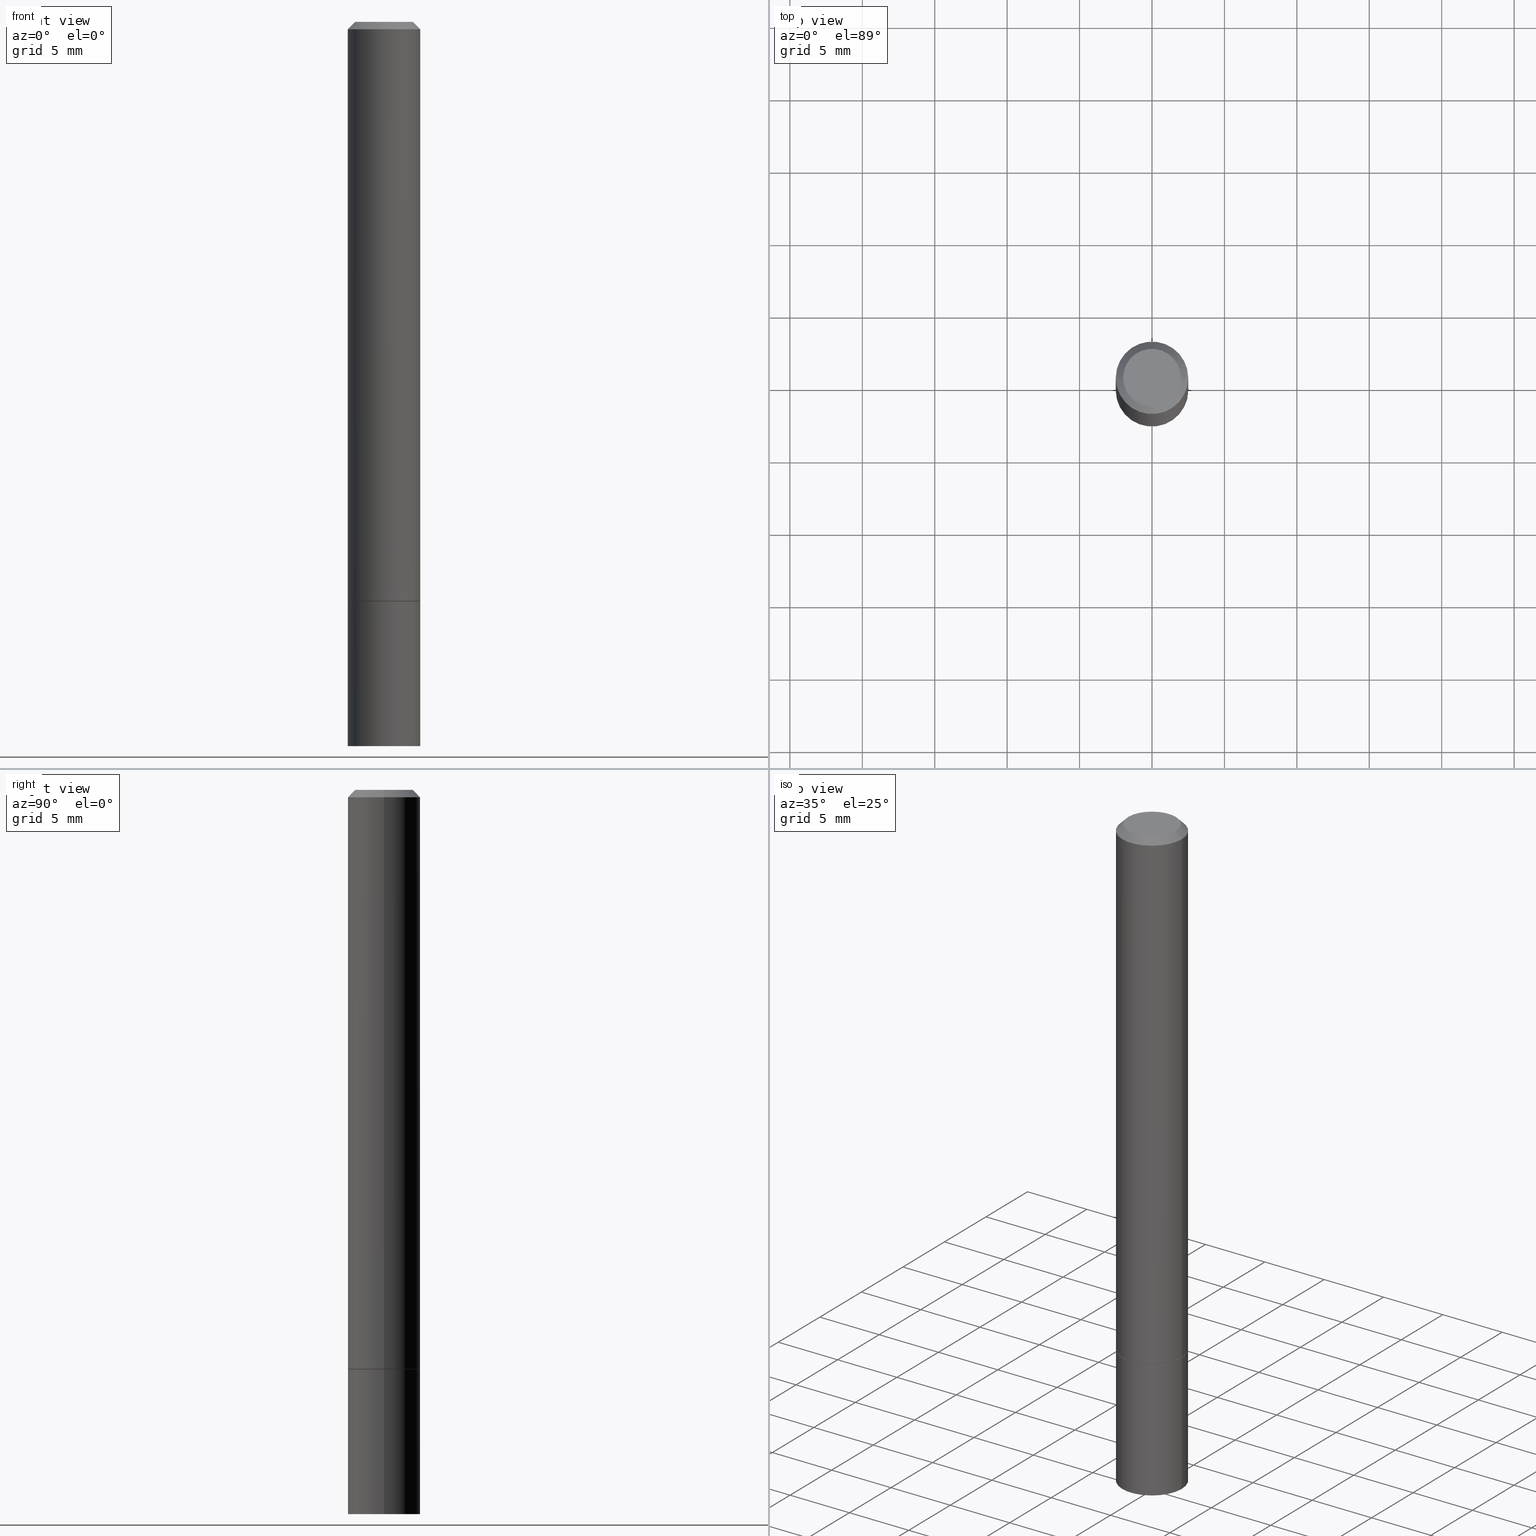
[diagram: canonical four-view strip — front | top / right | iso, engineering-drawing reading convention]
A machine part, canonical four-view strip (front | top / right | iso — engineering-drawing reading convention). The complete STEP part file that produces these views, byte-faithful:
ISO-10303-21;
HEADER;
FILE_DESCRIPTION (( 'STEP AP203' ),
    '1' );
FILE_NAME ('49165.STEP',
    '2024-02-28T16:18:36',
    ( '' ),
    ( '' ),
    'SwSTEP 2.0',
    'SolidWorks 2023',
    '' );
FILE_SCHEMA (( 'CONFIG_CONTROL_DESIGN' ));
ENDSEC;

DATA;
#1 = DIRECTION ( 'NONE',  ( -2.445468806185136597E-29, 3.491481338843145583E-15, 1.000000000000000000 ) ) ;
#2 = DIRECTION ( 'NONE',  ( 1.000000000000000000, 0.000000000000000000, 0.000000000000000000 ) ) ;
#3 = EDGE_CURVE ( 'NONE', #301, #77, #68, .T. ) ;
#4 = MANIFOLD_SOLID_BREP ( 'Body-Move/Copy2[1]', #205 ) ;
#5 = ORIENTED_EDGE ( 'NONE', *, *, #176, .F. ) ;
#6 = AXIS2_PLACEMENT_3D ( 'NONE', #233, #208, #339 ) ;
#7 = CC_DESIGN_DATE_AND_TIME_ASSIGNMENT ( #12, #246, ( #186 ) ) ;
#8 = ORIENTED_EDGE ( 'NONE', *, *, #245, .F. ) ;
#9 = CALENDAR_DATE ( 2024, 28, 2 ) ;
#10 = CARTESIAN_POINT ( 'NONE',  ( 4.890937612370278413E-31, -6.982962677686297772E-17, -0.02000000000000002123 ) ) ;
#11 = EDGE_CURVE ( 'NONE', #60, #78, #219, .T. ) ;
#12 = DATE_AND_TIME ( #152, #46 ) ;
#13 = APPROVAL_ROLE ( '' ) ;
#14 = AXIS2_PLACEMENT_3D ( 'NONE', #340, #69, #333 ) ;
#15 = APPLICATION_CONTEXT ( 'configuration controlled 3d designs of mechanical parts and assemblies' ) ;
#16 = PERSON_AND_ORGANIZATION ( #279, #214 ) ;
#17 = DIRECTION ( 'NONE',  ( 2.438088387897960049E-29, -3.491481338843145188E-15, -1.000000000000000000 ) ) ;
#18 = CARTESIAN_POINT ( 'NONE',  ( -0.09744999999999999496, -4.800662462063746650E-15, -1.574800000000000422 ) ) ;
#19 = APPROVAL ( #294, 'UNSPECIFIED' ) ;
#20 = FACE_OUTER_BOUND ( 'NONE', #53, .T. ) ;
#21 = CARTESIAN_POINT ( 'NONE',  ( -0.09844999999999999585, -2.082832155568281168E-15, -1.573800000000000088 ) ) ;
#22 = DIRECTION ( 'NONE',  ( -2.445468806185136597E-29, 3.491481338843145583E-15, 1.000000000000000000 ) ) ;
#23 = CLOSED_SHELL ( 'NONE', ( #287, #299, #174, #341, #331, #146, #41, #191 ) ) ;
#24 = ORIENTED_EDGE ( 'NONE', *, *, #93, .T. ) ;
#25 = DIRECTION ( 'NONE',  ( 1.000000000000000000, -6.982962677686266711E-15, 4.876176775795936353E-29 ) ) ;
#26 = ORIENTED_EDGE ( 'NONE', *, *, #101, .F. ) ;
#27 = ORIENTED_EDGE ( 'NONE', *, *, #160, .T. ) ;
#28 = APPLICATION_PROTOCOL_DEFINITION ( 'international standard', 'config_control_design', 1994, #15 ) ;
#29 = ORIENTED_EDGE ( 'NONE', *, *, #256, .F. ) ;
#30 = CYLINDRICAL_SURFACE ( 'NONE', #90, 0.09844999999999988483 ) ;
#31 = CARTESIAN_POINT ( 'NONE',  ( 3.851124275980353916E-29, -5.498384812410186944E-15, -1.574800000000000422 ) ) ;
#32 = EDGE_CURVE ( 'NONE', #196, #307, #253, .T. ) ;
#33 = DIRECTION ( 'NONE',  ( 0.7071067811864267805, -2.468850131080992517E-15, 0.7071067811866682540 ) ) ;
#34 = CALENDAR_DATE ( 2024, 28, 2 ) ;
#35 = LINE ( 'NONE', #317, #188 ) ;
#36 = CIRCLE ( 'NONE', #139, 0.09744999999999999496 ) ;
#37 = PERSON_AND_ORGANIZATION ( #279, #214 ) ;
#38 = EDGE_CURVE ( 'NONE', #72, #307, #150, .T. ) ;
#39 = CARTESIAN_POINT ( 'NONE',  ( 0.09844999999999978768, -7.452456546574688288E-16, -0.02000000000000002123 ) ) ;
#40 = AXIS2_PLACEMENT_3D ( 'NONE', #143, #80, #173 ) ;
#41 = ADVANCED_FACE ( 'NONE', ( #238 ), #211, .F. ) ;
#42 = DIRECTION ( 'NONE',  ( 1.000000000000000000, -6.982962677686265922E-15, 0.000000000000000000 ) ) ;
#43 = CARTESIAN_POINT ( 'NONE',  ( 0.07844999999999981155, -6.417258612913221441E-16, 4.159044147803931210E-30 ) ) ;
#44 = AXIS2_PLACEMENT_3D ( 'NONE', #65, #161, #100 ) ;
#45 = FACE_OUTER_BOUND ( 'NONE', #207, .T. ) ;
#46 = LOCAL_TIME ( 11, 18, 36.00000000000000000, #300 ) ;
#47 = DIRECTION ( 'NONE',  ( -2.445468806185136597E-29, 3.491481338843145583E-15, 1.000000000000000000 ) ) ;
#48 = ORIENTED_EDGE ( 'NONE', *, *, #3, .F. ) ;
#49 = DIRECTION ( 'NONE',  ( 1.000000000000000000, -6.982962677686266711E-15, 0.000000000000000000 ) ) ;
#50 = CARTESIAN_POINT ( 'NONE',  ( 0.000000000000000000, 0.000000000000000000, 0.000000000000000000 ) ) ;
#51 = VECTOR ( 'NONE', #203, 39.37007874015748143 ) ;
#52 = ORIENTED_EDGE ( 'NONE', *, *, #38, .F. ) ;
#53 = EDGE_LOOP ( 'NONE', ( #175, #167, #144, #336 ) ) ;
#54 = CARTESIAN_POINT ( 'NONE',  ( 6.874726756182513129E-16, 0.09844999999999450024, -1.574800000000000422 ) ) ;
#55 = CIRCLE ( 'NONE', #364, 0.09844999999999999585 ) ;
#56 = CC_DESIGN_APPROVAL ( #19, ( #206 ) ) ;
#57 = CARTESIAN_POINT ( 'NONE',  ( 3.848678807174168313E-29, -5.494893331071342359E-15, -1.573800000000000088 ) ) ;
#58 = EDGE_LOOP ( 'NONE', ( #194, #141, #259, #114 ) ) ;
#59 = DIRECTION ( 'NONE',  ( -2.445468806185136877E-29, 3.491481338843145188E-15, 1.000000000000000000 ) ) ;
#60 = VERTEX_POINT ( 'NONE', #267 ) ;
#61 = DIRECTION ( 'NONE',  ( -2.438088387897960049E-29, 3.491481338843145188E-15, 1.000000000000000000 ) ) ;
#62 = APPROVAL_ROLE ( '' ) ;
#63 = LINE ( 'NONE', #147, #164 ) ;
#64 = CC_DESIGN_PERSON_AND_ORGANIZATION_ASSIGNMENT ( #168, #289, ( #266 ) ) ;
#65 = CARTESIAN_POINT ( 'NONE',  ( 0.000000000000000000, 0.000000000000000000, 0.000000000000000000 ) ) ;
#66 = EDGE_CURVE ( 'NONE', #196, #192, #63, .T. ) ;
#67 = CYLINDRICAL_SURFACE ( 'NONE', #286, 0.09844999999999999585 ) ;
#68 = CIRCLE ( 'NONE', #6, 0.07844999999999981155 ) ;
#69 = DIRECTION ( 'NONE',  ( -2.445468806185136597E-29, 3.491481338843145583E-15, 1.000000000000000000 ) ) ;
#70 = ORIENTED_EDGE ( 'NONE', *, *, #104, .T. ) ;
#71 = FACE_OUTER_BOUND ( 'NONE', #179, .T. ) ;
#72 = VERTEX_POINT ( 'NONE', #342 ) ;
#73 = CARTESIAN_POINT ( 'NONE',  ( 4.890937612370278413E-31, -6.982962677686297772E-17, -0.02000000000000002123 ) ) ;
#74 = ORIENTED_EDGE ( 'NONE', *, *, #245, .T. ) ;
#75 = CONICAL_SURFACE ( 'NONE', #296, 0.09744999999999999496, 0.7853981633972775267 ) ;
#76 = VECTOR ( 'NONE', #59, 39.37007874015748143 ) ;
#77 = VERTEX_POINT ( 'NONE', #86 ) ;
#78 = VERTEX_POINT ( 'NONE', #85 ) ;
#79 = DIRECTION ( 'NONE',  ( 1.000000000000000000, -6.982962677686265922E-15, 0.000000000000000000 ) ) ;
#80 = DIRECTION ( 'NONE',  ( -2.445468806185136597E-29, 3.491481338843145583E-15, 1.000000000000000000 ) ) ;
#81 = MECHANICAL_CONTEXT ( 'NONE', #308, 'mechanical' ) ;
#82 = CC_DESIGN_DATE_AND_TIME_ASSIGNMENT ( #145, #123, ( #231 ) ) ;
#83 = DIRECTION ( 'NONE',  ( -2.445468806185136597E-29, 3.491481338843145583E-15, 1.000000000000000000 ) ) ;
#84 = AXIS2_PLACEMENT_3D ( 'NONE', #318, #240, #42 ) ;
#85 = CARTESIAN_POINT ( 'NONE',  ( 0.09844999999999999585, -7.560453691130944267E-15, -1.968500000000000139 ) ) ;
#86 = CARTESIAN_POINT ( 'NONE',  ( -0.07844999999999981155, 5.827282354529173170E-16, -3.953055038153090764E-30 ) ) ;
#87 = APPROVAL_DATE_TIME ( #239, #351 ) ;
#88 = LINE ( 'NONE', #213, #108 ) ;
#89 = VECTOR ( 'NONE', #193, 39.37007874015748143 ) ;
#90 = AXIS2_PLACEMENT_3D ( 'NONE', #268, #204, #25 ) ;
#91 = EDGE_CURVE ( 'NONE', #307, #252, #35, .T. ) ;
#92 = PERSON_AND_ORGANIZATION ( #279, #214 ) ;
#93 = EDGE_CURVE ( 'NONE', #301, #252, #155, .T. ) ;
#94 = COORDINATED_UNIVERSAL_TIME_OFFSET ( 5, 0, .BEHIND. ) ;
#95 = AXIS2_PLACEMENT_3D ( 'NONE', #10, #1, #241 ) ;
#96 = CARTESIAN_POINT ( 'NONE',  ( 0.09844999999999999585, -6.874726756182129545E-16, 4.800596035771099214E-30 ) ) ;
#97 = CARTESIAN_POINT ( 'NONE',  ( 3.851124275980353916E-29, -5.498384812410186944E-15, -1.574800000000000422 ) ) ;
#98 = DIRECTION ( 'NONE',  ( -2.445468806185136597E-29, 3.491481338843145583E-15, 1.000000000000000000 ) ) ;
#99 = APPROVAL ( #242, 'UNSPECIFIED' ) ;
#100 = DIRECTION ( 'NONE',  ( 1.000000000000000000, -6.982962677686266711E-15, 4.876176775795936353E-29 ) ) ;
#101 = EDGE_CURVE ( 'NONE', #77, #192, #298, .T. ) ;
#102 = ORIENTED_EDGE ( 'NONE', *, *, #265, .T. ) ;
#103 = DIRECTION ( 'NONE',  ( 1.000000000000000000, -6.982962677686266711E-15, 4.876176775795936353E-29 ) ) ;
#104 = EDGE_CURVE ( 'NONE', #252, #192, #171, .T. ) ;
#105 = ORIENTED_EDGE ( 'NONE', *, *, #271, .T. ) ;
#106 = VERTEX_POINT ( 'NONE', #346 ) ;
#107 = CARTESIAN_POINT ( 'NONE',  ( 4.890937612370278413E-31, -6.982962677686297772E-17, -0.02000000000000002123 ) ) ;
#108 = VECTOR ( 'NONE', #278, 39.37007874015748143 ) ;
#109 = ORIENTED_EDGE ( 'NONE', *, *, #101, .T. ) ;
#110 = APPROVAL_STATUS ( 'not_yet_approved' ) ;
#111 = ORIENTED_EDGE ( 'NONE', *, *, #162, .T. ) ;
#112 = FACE_OUTER_BOUND ( 'NONE', #257, .T. ) ;
#113 = PRODUCT_DEFINITION_SHAPE ( 'NONE', 'NONE',  #186 ) ;
#114 = ORIENTED_EDGE ( 'NONE', *, *, #265, .F. ) ;
#115 = PERSON_AND_ORGANIZATION ( #279, #214 ) ;
#116 = DIRECTION ( 'NONE',  ( 0.7071067811865466846, -7.319954787623252890E-15, -0.7071067811865483499 ) ) ;
#117 = APPROVAL_DATE_TIME ( #323, #19 ) ;
#118 = DIRECTION ( 'NONE',  ( -2.445468806185136877E-29, 3.491481338843145188E-15, 1.000000000000000000 ) ) ;
#119 = COORDINATED_UNIVERSAL_TIME_OFFSET ( 5, 0, .BEHIND. ) ;
#120 = MANIFOLD_SOLID_BREP ( 'Body-Move/Copy2[2]', #23 ) ;
#121 = AXIS2_PLACEMENT_3D ( 'NONE', #54, #292, #235 ) ;
#122 = AXIS2_PLACEMENT_3D ( 'NONE', #137, #362, #2 ) ;
#123 = DATE_TIME_ROLE ( 'classification_date' ) ;
#124 = SHAPE_DEFINITION_REPRESENTATION ( #113, #210 ) ;
#125 = DIRECTION ( 'NONE',  ( 1.000000000000000000, -6.982962677686266711E-15, 4.876176775795936353E-29 ) ) ;
#126 = CARTESIAN_POINT ( 'NONE',  ( -0.09844999999999999585, -5.486153590605640426E-15, -1.574800000000000200 ) ) ;
#127 = CARTESIAN_POINT ( 'NONE',  ( 3.851124275980353356E-29, -5.498384812410186155E-15, -1.574800000000000200 ) ) ;
#128 = PLANE ( 'NONE',  #290 ) ;
#129 = ORIENTED_EDGE ( 'NONE', *, *, #322, .F. ) ;
#130 = EDGE_CURVE ( 'NONE', #312, #196, #88, .T. ) ;
#131 = VECTOR ( 'NONE', #33, 39.37007874015748143 ) ;
#132 = PLANE ( 'NONE',  #261 ) ;
#133 = EDGE_LOOP ( 'NONE', ( #260, #29 ) ) ;
#134 = FACE_OUTER_BOUND ( 'NONE', #334, .T. ) ;
#135 = PRODUCT_RELATED_PRODUCT_CATEGORY ( 'detail', '', ( #266 ) ) ;
#136 = ORIENTED_EDGE ( 'NONE', *, *, #38, .T. ) ;
#137 = CARTESIAN_POINT ( 'NONE',  ( 0.000000000000000000, 0.000000000000000000, 0.000000000000000000 ) ) ;
#138 = ORIENTED_EDGE ( 'NONE', *, *, #256, .T. ) ;
#139 = AXIS2_PLACEMENT_3D ( 'NONE', #97, #98, #327 ) ;
#140 = AXIS2_PLACEMENT_3D ( 'NONE', #107, #201, #258 ) ;
#141 = ORIENTED_EDGE ( 'NONE', *, *, #324, .T. ) ;
#142 =( NAMED_UNIT ( * ) SI_UNIT ( $, .STERADIAN. ) SOLID_ANGLE_UNIT ( ) );
#143 = CARTESIAN_POINT ( 'NONE',  ( 4.813905344975441835E-29, -6.872981015512731707E-15, -1.968500000000000139 ) ) ;
#144 = ORIENTED_EDGE ( 'NONE', *, *, #104, .F. ) ;
#145 = DATE_AND_TIME ( #34, #262 ) ;
#146 = ADVANCED_FACE ( 'NONE', ( #321 ), #222, .T. ) ;
#147 = CARTESIAN_POINT ( 'NONE',  ( -0.09844999999999988483, 6.995293233558178146E-16, -4.842691596355949137E-30 ) ) ;
#148 = CIRCLE ( 'NONE', #248, 0.09844999999999999585 ) ;
#149 = LOCAL_TIME ( 11, 18, 36.00000000000000000, #94 ) ;
#150 = LINE ( 'NONE', #293, #131 ) ;
#151 = ADVANCED_FACE ( 'NONE', ( #112 ), #183, .F. ) ;
#152 = CALENDAR_DATE ( 2024, 28, 2 ) ;
#153 = COORDINATED_UNIVERSAL_TIME_OFFSET ( 5, 0, .BEHIND. ) ;
#154 = DIMENSIONAL_EXPONENTS ( 1.000000000000000000, 0.000000000000000000, 0.000000000000000000, 0.000000000000000000, 0.000000000000000000, 0.000000000000000000, 0.000000000000000000 ) ;
#155 = LINE ( 'NONE', #39, #281 ) ;
#156 = DIRECTION ( 'NONE',  ( 1.000000000000000000, -6.982962677686265922E-15, 0.000000000000000000 ) ) ;
#157 = AXIS2_PLACEMENT_3D ( 'NONE', #31, #83, #315 ) ;
#158 = LOCAL_TIME ( 11, 18, 36.00000000000000000, #275 ) ;
#159 = CARTESIAN_POINT ( 'NONE',  ( 4.890937612370278413E-31, -6.982962677686297772E-17, -0.02000000000000002123 ) ) ;
#160 = EDGE_CURVE ( 'NONE', #72, #312, #328, .T. ) ;
#161 = DIRECTION ( 'NONE',  ( -2.445468806185136597E-29, 3.491481338843145583E-15, 1.000000000000000000 ) ) ;
#162 = EDGE_CURVE ( 'NONE', #106, #313, #55, .T. ) ;
#163 = FACE_OUTER_BOUND ( 'NONE', #316, .T. ) ;
#164 = VECTOR ( 'NONE', #118, 39.37007874015748143 ) ;
#165 = CARTESIAN_POINT ( 'NONE',  ( 5.478134220644862595E-16, 0.07844999999999981155, -2.739067110322441158E-16 ) ) ;
#166 = ORIENTED_EDGE ( 'NONE', *, *, #360, .F. ) ;
#167 = ORIENTED_EDGE ( 'NONE', *, *, #66, .T. ) ;
#168 = PERSON_AND_ORGANIZATION ( #279, #214 ) ;
#169 = EDGE_LOOP ( 'NONE', ( #48, #24, #70, #26 ) ) ;
#170 =( NAMED_UNIT ( * ) PLANE_ANGLE_UNIT ( ) SI_UNIT ( $, .RADIAN. ) );
#171 = CIRCLE ( 'NONE', #95, 0.09844999999999978768 ) ;
#172 = APPROVAL_PERSON_ORGANIZATION ( #182, #99, #13 ) ;
#173 = DIRECTION ( 'NONE',  ( 1.000000000000000000, -6.982962677686265922E-15, 0.000000000000000000 ) ) ;
#174 = ADVANCED_FACE ( 'NONE', ( #330 ), #197, .T. ) ;
#175 = ORIENTED_EDGE ( 'NONE', *, *, #360, .T. ) ;
#176 = EDGE_CURVE ( 'NONE', #77, #301, #184, .T. ) ;
#177 = PERSON_AND_ORGANIZATION_ROLE ( 'creator' ) ;
#178 = UNCERTAINTY_MEASURE_WITH_UNIT (LENGTH_MEASURE( 1.000000000000000082E-05 ), #311, 'distance_accuracy_value', 'NONE');
#179 = EDGE_LOOP ( 'NONE', ( #338, #264, #102, #8 ) ) ;
#180 = DIRECTION ( 'NONE',  ( 1.000000000000000000, -6.982962677686265922E-15, 4.876176775795935793E-29 ) ) ;
#181 = AXIS2_PLACEMENT_3D ( 'NONE', #185, #302, #103 ) ;
#182 = PERSON_AND_ORGANIZATION ( #279, #214 ) ;
#183 = PLANE ( 'NONE',  #121 ) ;
#184 = CIRCLE ( 'NONE', #236, 0.07844999999999981155 ) ;
#185 = CARTESIAN_POINT ( 'NONE',  ( 0.000000000000000000, 0.000000000000000000, 0.000000000000000000 ) ) ;
#186 = PRODUCT_DEFINITION ( 'UNKNOWN', '', #206, #354 ) ;
#187 = DIRECTION ( 'NONE',  ( -1.000000000000000000, 6.982962677686265922E-15, -4.876176775795935793E-29 ) ) ;
#188 = VECTOR ( 'NONE', #272, 39.37007874015748143 ) ;
#189 = CC_DESIGN_SECURITY_CLASSIFICATION ( #231, ( #206 ) ) ;
#190 = FACE_OUTER_BOUND ( 'NONE', #58, .T. ) ;
#191 = ADVANCED_FACE ( 'NONE', ( #45 ), #128, .F. ) ;
#192 = VERTEX_POINT ( 'NONE', #221 ) ;
#193 = DIRECTION ( 'NONE',  ( -2.445468806185136877E-29, 3.491481338843145188E-15, 1.000000000000000000 ) ) ;
#194 = ORIENTED_EDGE ( 'NONE', *, *, #322, .T. ) ;
#195 = DIRECTION ( 'NONE',  ( 2.445468806185136597E-29, -3.491481338843145583E-15, -1.000000000000000000 ) ) ;
#196 = VERTEX_POINT ( 'NONE', #21 ) ;
#197 = CONICAL_SURFACE ( 'NONE', #276, 0.09844999999999978768, 0.7853981633974471688 ) ;
#198 = LENGTH_MEASURE_WITH_UNIT ( LENGTH_MEASURE( 0.02539999999999999897 ), #335 );
#199 = AXIS2_PLACEMENT_3D ( 'NONE', #57, #359, #227 ) ;
#200 = ORIENTED_EDGE ( 'NONE', *, *, #32, .T. ) ;
#201 = DIRECTION ( 'NONE',  ( 2.445468806185136597E-29, -3.491481338843145583E-15, -1.000000000000000000 ) ) ;
#202 = CC_DESIGN_PERSON_AND_ORGANIZATION_ASSIGNMENT ( #16, #209, ( #206 ) ) ;
#203 = DIRECTION ( 'NONE',  ( -0.7071067811865466846, 2.468850131082247989E-15, -0.7071067811865483499 ) ) ;
#204 = DIRECTION ( 'NONE',  ( -2.445468806185136597E-29, 3.491481338843145583E-15, 1.000000000000000000 ) ) ;
#205 = CLOSED_SHELL ( 'NONE', ( #234, #218, #151, #217 ) ) ;
#206 = PRODUCT_DEFINITION_FORMATION_WITH_SPECIFIED_SOURCE ( 'ANY', '', #266, .NOT_KNOWN. ) ;
#207 = EDGE_LOOP ( 'NONE', ( #344, #310 ) ) ;
#208 = DIRECTION ( 'NONE',  ( -2.445468806185136597E-29, 3.491481338843145583E-15, 1.000000000000000000 ) ) ;
#209 = PERSON_AND_ORGANIZATION_ROLE ( 'creator' ) ;
#210 = ADVANCED_BREP_SHAPE_REPRESENTATION ( '49165', ( #4, #120, #122 ), #355 ) ;
#211 = PLANE ( 'NONE',  #229 ) ;
#212 = PERSON_AND_ORGANIZATION_ROLE ( 'design_supplier' ) ;
#213 = CARTESIAN_POINT ( 'NONE',  ( -0.09744999999999999496, -4.805960916411969841E-15, -1.574800000000000422 ) ) ;
#214 = ORGANIZATION ( 'UNSPECIFIED', 'UNSPECIFIED', '' ) ;
#215 = DATE_AND_TIME ( #345, #244 ) ;
#216 = PERSON_AND_ORGANIZATION_ROLE ( 'classification_officer' ) ;
#217 = ADVANCED_FACE ( 'NONE', ( #71 ), #280, .T. ) ;
#218 = ADVANCED_FACE ( 'NONE', ( #250 ), #132, .T. ) ;
#219 = CIRCLE ( 'NONE', #40, 0.09844999999999999585 ) ;
#220 = DIRECTION ( 'NONE',  ( -1.000000000000000000, 6.982962677686266711E-15, 0.000000000000000000 ) ) ;
#221 = CARTESIAN_POINT ( 'NONE',  ( -0.09844999999999978768, 6.176430488413484730E-16, -0.02000000000000002123 ) ) ;
#222 = CONICAL_SURFACE ( 'NONE', #157, 0.09744999999999999496, 0.7853981633972775267 ) ;
#223 = DIRECTION ( 'NONE',  ( -2.445468806185136597E-29, 3.491481338843145583E-15, 1.000000000000000000 ) ) ;
#224 = ORIENTED_EDGE ( 'NONE', *, *, #11, .F. ) ;
#225 = CARTESIAN_POINT ( 'NONE',  ( 0.09844999999999999585, -6.182366006689555708E-15, -1.573800000000000088 ) ) ;
#226 = ORIENTED_EDGE ( 'NONE', *, *, #130, .T. ) ;
#227 = DIRECTION ( 'NONE',  ( 1.000000000000000000, -6.982962677686265922E-15, 0.000000000000000000 ) ) ;
#228 = ORIENTED_EDGE ( 'NONE', *, *, #271, .F. ) ;
#229 = AXIS2_PLACEMENT_3D ( 'NONE', #269, #61, #180 ) ;
#230 = APPLICATION_PROTOCOL_DEFINITION ( 'international standard', 'config_control_design', 1994, #308 ) ;
#231 = SECURITY_CLASSIFICATION ( '', '', #319 ) ;
#232 = FACE_OUTER_BOUND ( 'NONE', #366, .T. ) ;
#233 = CARTESIAN_POINT ( 'NONE',  ( 0.000000000000000000, 0.000000000000000000, 0.000000000000000000 ) ) ;
#234 = ADVANCED_FACE ( 'NONE', ( #190 ), #67, .T. ) ;
#235 = DIRECTION ( 'NONE',  ( -1.000000000000000000, 6.982962677686265922E-15, -4.876176775795935793E-29 ) ) ;
#236 = AXIS2_PLACEMENT_3D ( 'NONE', #50, #325, #326 ) ;
#237 = CC_DESIGN_PERSON_AND_ORGANIZATION_ASSIGNMENT ( #273, #216, ( #231 ) ) ;
#238 = FACE_OUTER_BOUND ( 'NONE', #133, .T. ) ;
#239 = DATE_AND_TIME ( #277, #158 ) ;
#240 = DIRECTION ( 'NONE',  ( -2.445468806185136597E-29, 3.491481338843145583E-15, 1.000000000000000000 ) ) ;
#241 = DIRECTION ( 'NONE',  ( 1.000000000000000000, -6.982962677686266711E-15, 0.000000000000000000 ) ) ;
#242 = APPROVAL_STATUS ( 'not_yet_approved' ) ;
#243 = CIRCLE ( 'NONE', #337, 0.09844999999999999585 ) ;
#244 = LOCAL_TIME ( 11, 18, 36.00000000000000000, #153 ) ;
#245 = EDGE_CURVE ( 'NONE', #313, #106, #148, .T. ) ;
#246 = DATE_TIME_ROLE ( 'creation_date' ) ;
#247 = CARTESIAN_POINT ( 'NONE',  ( 3.851124275980353356E-29, -5.498384812410186155E-15, -1.574800000000000200 ) ) ;
#248 = AXIS2_PLACEMENT_3D ( 'NONE', #247, #349, #352 ) ;
#249 = CARTESIAN_POINT ( 'NONE',  ( 4.813905344975441835E-29, -6.872981015512731707E-15, -1.968500000000000139 ) ) ;
#250 = FACE_OUTER_BOUND ( 'NONE', #358, .T. ) ;
#251 = CARTESIAN_POINT ( 'NONE',  ( 0.09844999999999978768, -7.452456546574688288E-16, -0.02000000000000002123 ) ) ;
#252 = VERTEX_POINT ( 'NONE', #251 ) ;
#253 = CIRCLE ( 'NONE', #84, 0.09844999999999999585 ) ;
#254 = CONICAL_SURFACE ( 'NONE', #140, 0.09844999999999978768, 0.7853981633974471688 ) ;
#255 = DIRECTION ( 'NONE',  ( 1.000000000000000000, -6.982962677686264344E-15, 0.000000000000000000 ) ) ;
#256 = EDGE_CURVE ( 'NONE', #312, #72, #36, .T. ) ;
#257 = EDGE_LOOP ( 'NONE', ( #111, #74 ) ) ;
#258 = DIRECTION ( 'NONE',  ( -1.000000000000000000, 6.982962677686266711E-15, 0.000000000000000000 ) ) ;
#259 = ORIENTED_EDGE ( 'NONE', *, *, #162, .F. ) ;
#260 = ORIENTED_EDGE ( 'NONE', *, *, #160, .F. ) ;
#261 = AXIS2_PLACEMENT_3D ( 'NONE', #309, #17, #187 ) ;
#262 = LOCAL_TIME ( 11, 18, 36.00000000000000000, #119 ) ;
#263 = PERSON_AND_ORGANIZATION ( #279, #214 ) ;
#264 = ORIENTED_EDGE ( 'NONE', *, *, #11, .T. ) ;
#265 = EDGE_CURVE ( 'NONE', #78, #106, #353, .T. ) ;
#266 = PRODUCT ( '49165', '49165', '', ( #81 ) ) ;
#267 = CARTESIAN_POINT ( 'NONE',  ( -0.09844999999999999585, -5.486153590605640426E-15, -1.968500000000000139 ) ) ;
#268 = CARTESIAN_POINT ( 'NONE',  ( 0.000000000000000000, 0.000000000000000000, 0.000000000000000000 ) ) ;
#269 = CARTESIAN_POINT ( 'NONE',  ( 3.851124275980353916E-29, -5.498384812410186944E-15, -1.574800000000000422 ) ) ;
#270 = APPROVAL_DATE_TIME ( #215, #99 ) ;
#271 = EDGE_CURVE ( 'NONE', #192, #252, #304, .T. ) ;
#272 = DIRECTION ( 'NONE',  ( -2.445468806185136877E-29, 3.491481338843145188E-15, 1.000000000000000000 ) ) ;
#273 = PERSON_AND_ORGANIZATION ( #279, #214 ) ;
#274 = CARTESIAN_POINT ( 'NONE',  ( -0.09844999999999978768, 6.176430488413484730E-16, -0.02000000000000002123 ) ) ;
#275 = COORDINATED_UNIVERSAL_TIME_OFFSET ( 5, 0, .BEHIND. ) ;
#276 = AXIS2_PLACEMENT_3D ( 'NONE', #73, #195, #220 ) ;
#277 = CALENDAR_DATE ( 2024, 28, 2 ) ;
#278 = DIRECTION ( 'NONE',  ( -0.7071067811864267805, 7.493145998869918709E-15, 0.7071067811866682540 ) ) ;
#279 = PERSON ( 'UNSPECIFIED', 'UNSPECIFIED', 'UNSPECIFIED', ('UNSPECIFIED'), ('UNSPECIFIED'), ('UNSPECIFIED') ) ;
#280 = CYLINDRICAL_SURFACE ( 'NONE', #44, 0.09844999999999999585 ) ;
#281 = VECTOR ( 'NONE', #116, 39.37007874015748143 ) ;
#282 = CARTESIAN_POINT ( 'NONE',  ( 3.851124275980353916E-29, -5.498384812410186944E-15, -1.574800000000000422 ) ) ;
#283 = CARTESIAN_POINT ( 'NONE',  ( 0.000000000000000000, 0.000000000000000000, 0.000000000000000000 ) ) ;
#284 = DIRECTION ( 'NONE',  ( -1.000000000000000000, 6.982962677686265922E-15, -4.876176775795935793E-29 ) ) ;
#285 = ORIENTED_EDGE ( 'NONE', *, *, #66, .F. ) ;
#286 = AXIS2_PLACEMENT_3D ( 'NONE', #283, #306, #125 ) ;
#287 = ADVANCED_FACE ( 'NONE', ( #163 ), #75, .T. ) ;
#288 = LINE ( 'NONE', #291, #76 ) ;
#289 = PERSON_AND_ORGANIZATION_ROLE ( 'design_owner' ) ;
#290 = AXIS2_PLACEMENT_3D ( 'NONE', #165, #303, #284 ) ;
#291 = CARTESIAN_POINT ( 'NONE',  ( -0.09844999999999999585, 6.995293233558186035E-16, -4.842691596355954042E-30 ) ) ;
#292 = DIRECTION ( 'NONE',  ( 2.438088387897960049E-29, -3.491481338843145188E-15, -1.000000000000000000 ) ) ;
#293 = CARTESIAN_POINT ( 'NONE',  ( 0.09744999999999999496, -6.178874525350713489E-15, -1.574800000000000422 ) ) ;
#294 = APPROVAL_STATUS ( 'not_yet_approved' ) ;
#295 = ORIENTED_EDGE ( 'NONE', *, *, #130, .F. ) ;
#296 = AXIS2_PLACEMENT_3D ( 'NONE', #282, #22, #255 ) ;
#297 = APPROVAL_PERSON_ORGANIZATION ( #115, #19, #343 ) ;
#298 = LINE ( 'NONE', #274, #51 ) ;
#299 = ADVANCED_FACE ( 'NONE', ( #20 ), #356, .T. ) ;
#300 = COORDINATED_UNIVERSAL_TIME_OFFSET ( 5, 0, .BEHIND. ) ;
#301 = VERTEX_POINT ( 'NONE', #43 ) ;
#302 = DIRECTION ( 'NONE',  ( -2.445468806185136597E-29, 3.491481338843145583E-15, 1.000000000000000000 ) ) ;
#303 = DIRECTION ( 'NONE',  ( 2.438088387897960049E-29, -3.491481338843145188E-15, -1.000000000000000000 ) ) ;
#304 = CIRCLE ( 'NONE', #347, 0.09844999999999978768 ) ;
#305 = CC_DESIGN_APPROVAL ( #99, ( #231 ) ) ;
#306 = DIRECTION ( 'NONE',  ( -2.445468806185136597E-29, 3.491481338843145583E-15, 1.000000000000000000 ) ) ;
#307 = VERTEX_POINT ( 'NONE', #225 ) ;
#308 = APPLICATION_CONTEXT ( 'configuration controlled 3d designs of mechanical parts and assemblies' ) ;
#309 = CARTESIAN_POINT ( 'NONE',  ( 6.874726756182609764E-16, 0.09844999999999311247, -1.968500000000000361 ) ) ;
#310 = ORIENTED_EDGE ( 'NONE', *, *, #3, .T. ) ;
#311 =( CONVERSION_BASED_UNIT ( 'INCH', #198 ) LENGTH_UNIT ( ) NAMED_UNIT ( #154 ) );
#312 = VERTEX_POINT ( 'NONE', #18 ) ;
#313 = VERTEX_POINT ( 'NONE', #126 ) ;
#314 = CC_DESIGN_PERSON_AND_ORGANIZATION_ASSIGNMENT ( #92, #212, ( #206 ) ) ;
#315 = DIRECTION ( 'NONE',  ( 1.000000000000000000, -6.982962677686264344E-15, 0.000000000000000000 ) ) ;
#316 = EDGE_LOOP ( 'NONE', ( #27, #226, #166, #52 ) ) ;
#317 = CARTESIAN_POINT ( 'NONE',  ( 0.09844999999999988483, -6.874726756182121656E-16, 4.800596035771093609E-30 ) ) ;
#318 = CARTESIAN_POINT ( 'NONE',  ( 3.848678807174168313E-29, -5.494893331071342359E-15, -1.573800000000000088 ) ) ;
#319 = SECURITY_CLASSIFICATION_LEVEL ( 'unclassified' ) ;
#320 = CC_DESIGN_APPROVAL ( #351, ( #186 ) ) ;
#321 = FACE_OUTER_BOUND ( 'NONE', #332, .T. ) ;
#322 = EDGE_CURVE ( 'NONE', #78, #60, #243, .T. ) ;
#323 = DATE_AND_TIME ( #9, #149 ) ;
#324 = EDGE_CURVE ( 'NONE', #60, #313, #288, .T. ) ;
#325 = DIRECTION ( 'NONE',  ( -2.445468806185136597E-29, 3.491481338843145583E-15, 1.000000000000000000 ) ) ;
#326 = DIRECTION ( 'NONE',  ( 1.000000000000000000, -6.982962677686265922E-15, 4.876176775795935793E-29 ) ) ;
#327 = DIRECTION ( 'NONE',  ( 1.000000000000000000, -6.982962677686264344E-15, 0.000000000000000000 ) ) ;
#328 = CIRCLE ( 'NONE', #14, 0.09744999999999999496 ) ;
#329 = ORIENTED_EDGE ( 'NONE', *, *, #32, .F. ) ;
#330 = FACE_OUTER_BOUND ( 'NONE', #169, .T. ) ;
#331 = ADVANCED_FACE ( 'NONE', ( #232 ), #30, .T. ) ;
#332 = EDGE_LOOP ( 'NONE', ( #295, #138, #136, #329 ) ) ;
#333 = DIRECTION ( 'NONE',  ( 1.000000000000000000, -6.982962677686264344E-15, 0.000000000000000000 ) ) ;
#334 = EDGE_LOOP ( 'NONE', ( #361, #5, #109, #105 ) ) ;
#335 =( LENGTH_UNIT ( ) NAMED_UNIT ( * ) SI_UNIT ( $, .METRE. ) );
#336 = ORIENTED_EDGE ( 'NONE', *, *, #91, .F. ) ;
#337 = AXIS2_PLACEMENT_3D ( 'NONE', #249, #350, #79 ) ;
#338 = ORIENTED_EDGE ( 'NONE', *, *, #324, .F. ) ;
#339 = DIRECTION ( 'NONE',  ( 1.000000000000000000, -6.982962677686265922E-15, 4.876176775795935793E-29 ) ) ;
#340 = CARTESIAN_POINT ( 'NONE',  ( 3.851124275980353916E-29, -5.498384812410186944E-15, -1.574800000000000422 ) ) ;
#341 = ADVANCED_FACE ( 'NONE', ( #134 ), #254, .T. ) ;
#342 = CARTESIAN_POINT ( 'NONE',  ( 0.09744999999999999496, -6.178874525350713489E-15, -1.574800000000000422 ) ) ;
#343 = APPROVAL_ROLE ( '' ) ;
#344 = ORIENTED_EDGE ( 'NONE', *, *, #176, .T. ) ;
#345 = CALENDAR_DATE ( 2024, 28, 2 ) ;
#346 = CARTESIAN_POINT ( 'NONE',  ( 0.09844999999999999585, -6.185857488028398715E-15, -1.574800000000000200 ) ) ;
#347 = AXIS2_PLACEMENT_3D ( 'NONE', #159, #223, #49 ) ;
#348 = APPROVAL_PERSON_ORGANIZATION ( #263, #351, #62 ) ;
#349 = DIRECTION ( 'NONE',  ( -2.445468806185136597E-29, 3.491481338843145583E-15, 1.000000000000000000 ) ) ;
#350 = DIRECTION ( 'NONE',  ( -2.445468806185136597E-29, 3.491481338843145583E-15, 1.000000000000000000 ) ) ;
#351 = APPROVAL ( #110, 'UNSPECIFIED' ) ;
#352 = DIRECTION ( 'NONE',  ( 1.000000000000000000, -6.982962677686265922E-15, 0.000000000000000000 ) ) ;
#353 = LINE ( 'NONE', #96, #89 ) ;
#354 = DESIGN_CONTEXT ( 'detailed design', #15, 'design' ) ;
#355 =( GEOMETRIC_REPRESENTATION_CONTEXT ( 3 ) GLOBAL_UNCERTAINTY_ASSIGNED_CONTEXT ( ( #178 ) ) GLOBAL_UNIT_ASSIGNED_CONTEXT ( ( #311, #170, #142 ) ) REPRESENTATION_CONTEXT ( 'NONE', 'WORKASPACE' ) );
#356 = CYLINDRICAL_SURFACE ( 'NONE', #181, 0.09844999999999988483 ) ;
#357 = CC_DESIGN_PERSON_AND_ORGANIZATION_ASSIGNMENT ( #37, #177, ( #186 ) ) ;
#358 = EDGE_LOOP ( 'NONE', ( #129, #224 ) ) ;
#359 = DIRECTION ( 'NONE',  ( -2.445468806185136597E-29, 3.491481338843145583E-15, 1.000000000000000000 ) ) ;
#360 = EDGE_CURVE ( 'NONE', #307, #196, #365, .T. ) ;
#361 = ORIENTED_EDGE ( 'NONE', *, *, #93, .F. ) ;
#362 = DIRECTION ( 'NONE',  ( 0.000000000000000000, 0.000000000000000000, 1.000000000000000000 ) ) ;
#363 = ORIENTED_EDGE ( 'NONE', *, *, #91, .T. ) ;
#364 = AXIS2_PLACEMENT_3D ( 'NONE', #127, #47, #156 ) ;
#365 = CIRCLE ( 'NONE', #199, 0.09844999999999999585 ) ;
#366 = EDGE_LOOP ( 'NONE', ( #285, #200, #363, #228 ) ) ;
ENDSEC;
END-ISO-10303-21;
